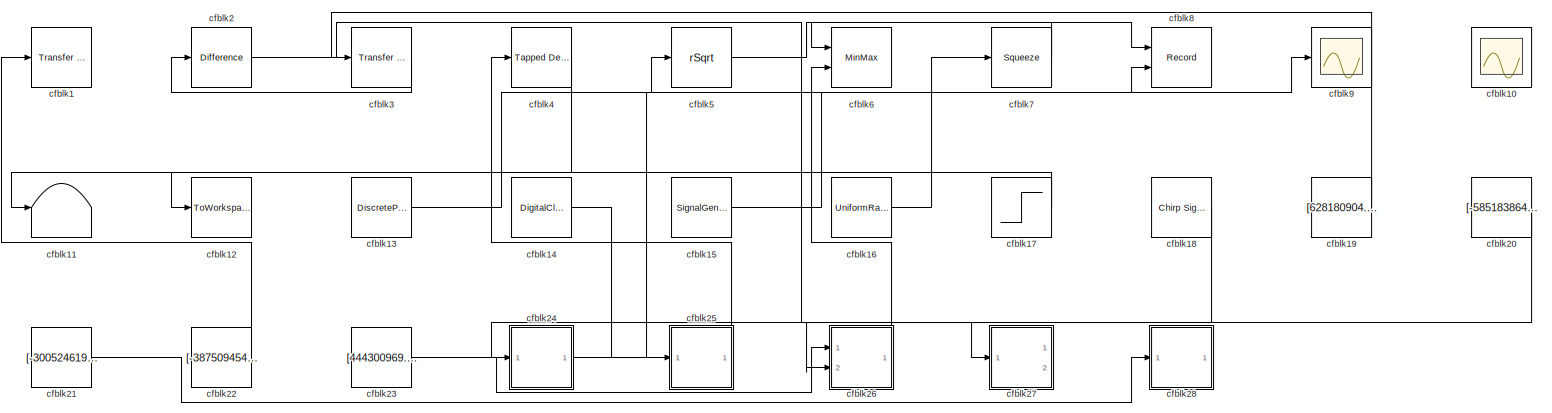
[diagram: root canvas - part 1/1, most of the canvas]
MODEL slx_73451fa4afc9
KIND model
CONFIG AbsTol = auto
CONFIG EnableMultiTasking = off
CONFIG FixedStep = auto
CONFIG MaxStep = auto
CONFIG MinStep = auto
CONFIG RelTol = 1e-3
CONFIG SampleTimeConstraint = Unconstrained
CONFIG SolverName = VariableStepAuto
CONFIG StartTime = 0.0
CONFIG StopTime = 10.0
BLOCK [Reference] cfblk1  REF=simulink/Discrete/Transfer Fcn
First Order
  Ports = [1, 1]
  SourceBlock = simulink/Discrete/Transfer Fcn\nFirst Order
  SourceProductBaseCode = SL
  SourceType = First Order Transfer Fcn
BLOCK [Scope] cfblk10
  Floating = on
  NumInputPorts = 1
  Ports = []
BLOCK [Terminator] cfblk11
BLOCK [ToWorkspace] cfblk12
  FixptAsFi = on
  MaxDataPoints = inf
  Ports = [1]
  SampleTime = -1
  SaveFormat = Timeseries
  VariableName = ynrykne
BLOCK [DiscretePulseGenerator] cfblk13
  Amplitude = [-398798093.304317]
  Period = [77125726.918553]
  PhaseDelay = [4.000000]
  Ports = [0, 1]
  PulseType = Time based
  PulseWidth = 5
BLOCK [DigitalClock] cfblk14
BLOCK [SignalGenerator] cfblk15
  Amplitude = [-752789414.880078]
  Ports = [0, 1]
BLOCK [UniformRandomNumber] cfblk16
  Maximum = [9788274661.270817]
  Minimum = [-9242255674.904612]
  SampleTime = 0.1
  Seed = [45810577.000000]
BLOCK [Step] cfblk17
  After = [767661496.566579]
  Before = [773643221.026126]
  SampleTime = 0
  Time = [5.000000]
BLOCK [Reference] cfblk18  REF=simulink/Sources/Chirp Signal
  Ports = [0, 1]
  SourceBlock = simulink/Sources/Chirp Signal
  SourceProductBaseCode = SL
  SourceType = chirp
BLOCK [Constant] cfblk19
  SampleTime = 1
  Value = [628180904.692859]
BLOCK [Reference] cfblk2  REF=simulink/Discrete/Difference
  Ports = [1, 1]
  SourceBlock = simulink/Discrete/Difference
  SourceProductBaseCode = SL
  SourceType = Difference
BLOCK [Constant] cfblk20
  SampleTime = 1
  Value = [-585183864.078017]
BLOCK [Constant] cfblk21
  SampleTime = 1
  Value = [-300524619.690994]
BLOCK [Constant] cfblk22
  SampleTime = 1
  Value = [-387509454.103004]
BLOCK [Constant] cfblk23
  SampleTime = 1
  Value = [444300969.530090]
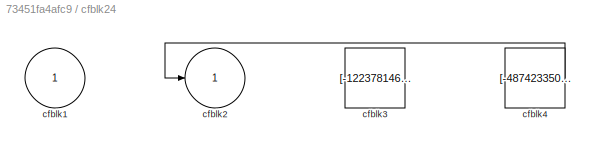
BLOCK [SubSystem] cfblk24
  Ports = [1, 1]
  RequestExecContextInheritance = off
BLOCK [Inport] cfblk24/cfblk1
BLOCK [Outport] cfblk24/cfblk2
BLOCK [Constant] cfblk24/cfblk3
  SampleTime = 1
  Value = [-122378146.836618]
BLOCK [Constant] cfblk24/cfblk4
  SampleTime = 1
  Value = [-487423350.624283]
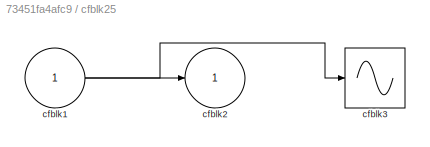
BLOCK [SubSystem] cfblk25
  Ports = [1, 1]
  RequestExecContextInheritance = off
BLOCK [Inport] cfblk25/cfblk1
BLOCK [Outport] cfblk25/cfblk2
BLOCK [Sin] cfblk25/cfblk3
  Ports = [1, 1]
  SampleTime = 0
  TimeSource = Use external signal
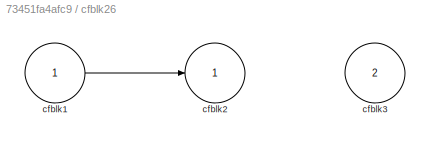
BLOCK [SubSystem] cfblk26
  Ports = [2, 1]
  RequestExecContextInheritance = off
BLOCK [Inport] cfblk26/cfblk1
BLOCK [Outport] cfblk26/cfblk2
BLOCK [Inport] cfblk26/cfblk3
  Port = 2
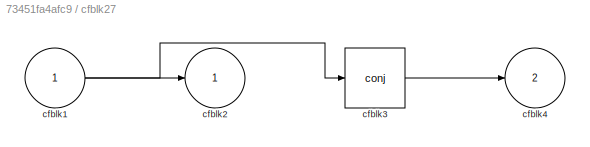
BLOCK [SubSystem] cfblk27
  Ports = [1, 2]
  RequestExecContextInheritance = off
BLOCK [Inport] cfblk27/cfblk1
BLOCK [Outport] cfblk27/cfblk2
BLOCK [Math] cfblk27/cfblk3
  Operator = conj
  Ports = [1, 1]
BLOCK [Outport] cfblk27/cfblk4
  Port = 2
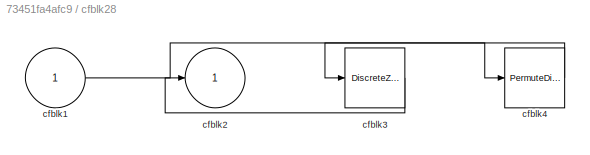
BLOCK [SubSystem] cfblk28
  Ports = [1, 1]
  RequestExecContextInheritance = off
BLOCK [Inport] cfblk28/cfblk1
BLOCK [Outport] cfblk28/cfblk2
BLOCK [DiscreteZeroPole] cfblk28/cfblk3
  Gain = 1
  Poles = [0 0.5]
BLOCK [PermuteDimensions] cfblk28/cfblk4
BLOCK [Reference] cfblk3  REF=simulink/Discrete/Transfer Fcn
Lead or Lag
  Ports = [1, 1]
  SourceBlock = simulink/Discrete/Transfer Fcn\nLead or Lag
  SourceProductBaseCode = SL
  SourceType = Lead or Lag Compensator
BLOCK [Reference] cfblk4  REF=simulink/Discrete/Tapped Delay
  Ports = [1, 1]
  SourceBlock = simulink/Discrete/Tapped Delay
  SourceProductBaseCode = SL
  SourceType = Tapped Delay Line
BLOCK [Sqrt] cfblk5
  AlgorithmType = Newton-Raphson
  Operator = rSqrt
BLOCK [MinMax] cfblk6
  Inputs = 2
  Ports = [2, 1]
BLOCK [Squeeze] cfblk7
BLOCK [Record] cfblk8
  CompatibilityTag = XY
  FileSettingsInternal = {"entries":[{"content":{"excelSettings":{"content":{},"type":"Streamout.ExcelSettings"}},"type":"Streamout.FileSettingStorage","uuid":"272d74a1-5d8b-46b1-9eb4-3d9c30eaade7"}],"packageUris":["http://schema.mathworks.com/mf0/streamout_blocks/R2020a"],"version":"1.0"}
  Layout = [1 1]
  Ports = [2]
  SignalsInternal = {"entries":[{"content":{"signals":[{"content":{"blockPath":["sampleModel195/cfblk8"],"channel":[],"dimensions":[1],"domain":"sampleModel195/cfblk8","lineColor":"#a2142f","plots":[1],"port":1,"sid":[""],"signalID":7385,"signalName":"cfblk5"},"type":"RecordBlkView.Signal","uuid":"32de41d4-8e66-4423-af7f-2e1291e0bc86"},{"content":{"blockPath":["sampleModel195/cfblk8"],"channel":[],"dimensions":[1],"d...<+378ch>
  VisualizationBindings = {"xyplotplugin":{"info":[{"series":[{"bindingParametersList":[{"parameter":"X-Axis","signalID":7385,"signalName":"cfblk5"},{"parameter":"Y-Axis","signalID":7389,"signalName":"cfblk15"}],"seriesID":60012}],"subplotID":1}]}}
BLOCK [Scope] cfblk9
  Floating = off
  NumInputPorts = 1
  Ports = [1]
LINE cfblk13:1 -> cfblk5:1
LINE cfblk14:1 -> cfblk25:1
LINE cfblk15:1 -> cfblk8:2
LINE cfblk16:1 -> cfblk7:1
LINE cfblk17:1 -> cfblk12:1
LINE cfblk18:1 -> cfblk24:1
LINE cfblk19:1 -> cfblk3:1
LINE cfblk20:1 -> cfblk26:2
LINE cfblk21:1 -> cfblk28:1
LINE cfblk22:1 -> cfblk1:1
LINE cfblk23:1 -> cfblk26:1
LINE cfblk24/cfblk4:1 -> cfblk24/cfblk2:1
LINE cfblk24:1 -> cfblk9:1
NET cfblk25/cfblk1:1 -> cfblk25/cfblk2:1, cfblk25/cfblk3:1
LINE cfblk25:1 -> cfblk4:1
LINE cfblk26/cfblk1:1 -> cfblk26/cfblk2:1
LINE cfblk26:1 -> cfblk6:2
NET cfblk27/cfblk1:1 -> cfblk27/cfblk2:1, cfblk27/cfblk3:1
LINE cfblk27/cfblk3:1 -> cfblk27/cfblk4:1
LINE cfblk28/cfblk1:1 -> cfblk28/cfblk4:1
LINE cfblk28/cfblk3:1 -> cfblk28/cfblk2:1
LINE cfblk28/cfblk4:1 -> cfblk28/cfblk3:1
LINE cfblk2:1 -> cfblk27:1
LINE cfblk3:1 -> cfblk2:1
LINE cfblk4:1 -> cfblk11:1
LINE cfblk5:1 -> cfblk8:1
LINE cfblk7:1 -> cfblk6:1
note: NET lines group one-source signal fan-out (src -> all destinations, sorted); 1:1 wires keep LINE
